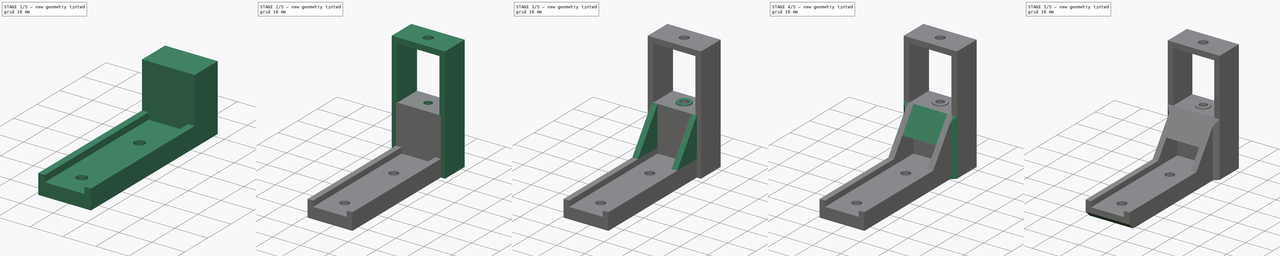
[diagram: build sequence overview — one tinted view per stage of 5, left to right]
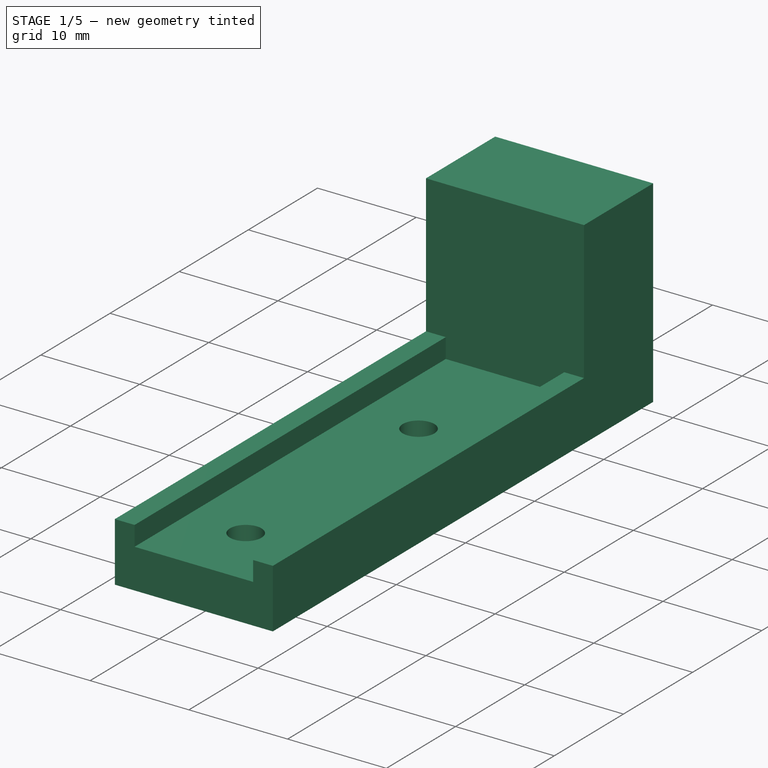
[diagram: stage 1 of 5 — iso view after this stage's code; geometry added in this stage tinted green]
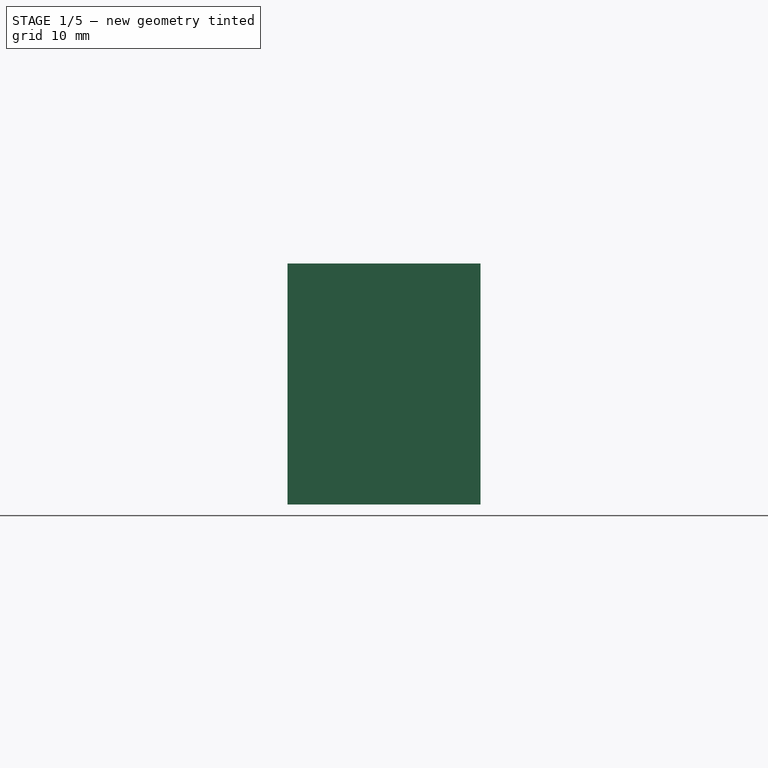
[diagram: stage 1 of 5 — front view after this stage's code; geometry added in this stage tinted green]
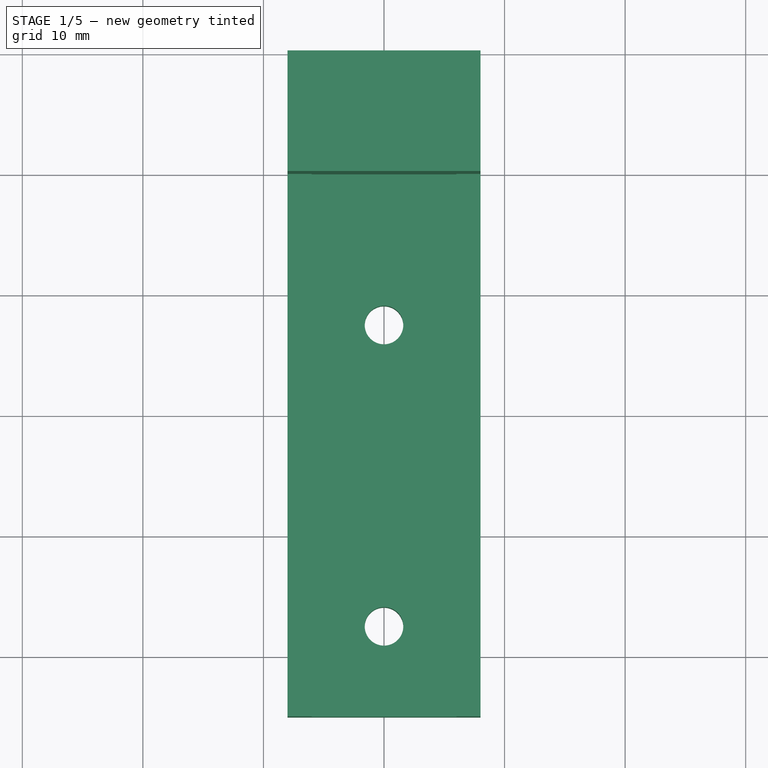
[diagram: stage 1 of 5 — top view after this stage's code; geometry added in this stage tinted green]
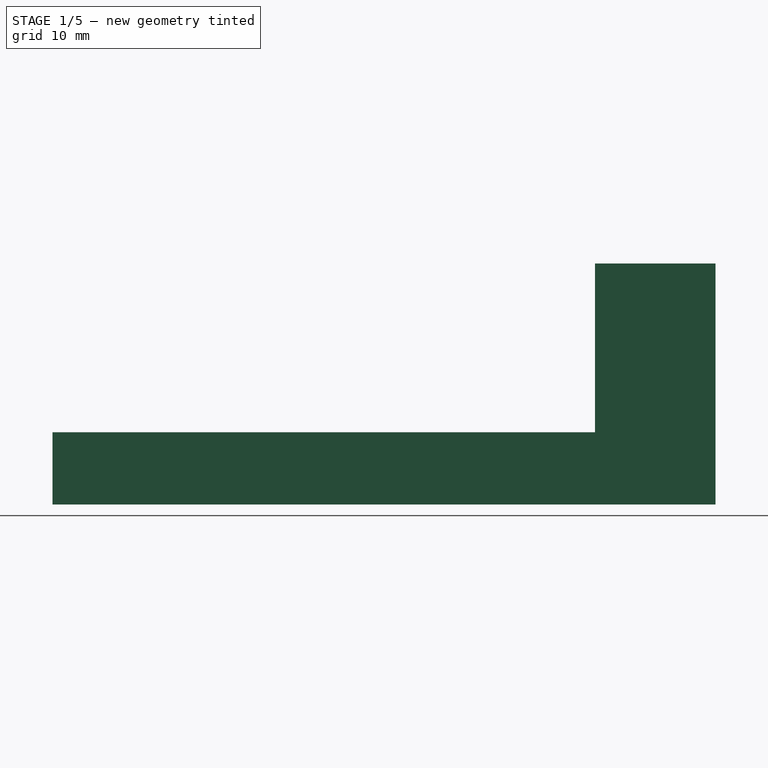
[diagram: stage 1 of 5 — right view after this stage's code; geometry added in this stage tinted green]
FCSTD DOCUMENT  (FreeCAD 0.18.1R)
Label: Rail Tip
License: All rights reserved
LicenseURL: http://en.wikipedia.org/wiki/All_rights_reserved
objects: Sketcher::SketchObject×12, PartDesign::Pad×8, PartDesign::Pocket×4, PartDesign::Chamfer×3, PartDesign::Mirrored×1, Spreadsheet::Sheet×1, PartDesign::Body×1
note: 41 computed .brp shape members not serialized (recipe doc carries the construction recipe); baked Part::Feature solids carry a one-line shape summary decoded from their .brp

FEATURE [Sketcher::SketchObject] Sketch  label="Sketch Rail Bottom"
  MapMode = 5
  Placement = pos=(0,0,0) rot=(1,0,0;1.5708rad)
  Support = -> [XZ_Plane]
  sketch-geometry (8):
    g0: LineSegment StartX=-6 StartY=6 StartZ=0 EndX=-6 EndY=4 EndZ=0
    g1: LineSegment StartX=-6 StartY=4 StartZ=0 EndX=6 EndY=4 EndZ=0
    g2: LineSegment StartX=6 StartY=4 StartZ=0 EndX=6 EndY=6 EndZ=0
    g3: LineSegment StartX=6 StartY=6 StartZ=0 EndX=8 EndY=6 EndZ=0
    g4: LineSegment StartX=8 StartY=6 StartZ=0 EndX=8 EndY=0 EndZ=0
    g5: LineSegment StartX=8 StartY=0 StartZ=0 EndX=-8 EndY=0 EndZ=0
    g6: LineSegment StartX=-8 StartY=0 StartZ=0 EndX=-8 EndY=6 EndZ=0
    g7: LineSegment StartX=-8 StartY=6 StartZ=0 EndX=-6 EndY=6 EndZ=0
  constraints (24):
    c: Coincident(g0,g1)
    c: Horizontal(g1)
    c: Coincident(g1,g2)
    c: Vertical(g2)
    c: Coincident(g2,g3)
    c: Horizontal(g3)
    c: Coincident(g3,g4)
    c: PointOnObject(g4,g-1)
    c: Vertical(g4)
    c: Coincident(g4,g5)
    c: Horizontal(g5)
    c: Coincident(g5,g6)
    c: Vertical(g6)
    c: Coincident(g6,g7)
    c: Coincident(g7,g0)
    c: Horizontal(g7)
    c: Vertical(g0)
    c: Horizontal(g0,g2)
    c: Equal(g7,g3)
    c: Distance(g1) = 12
    c: Distance(g1,g5) = 4
    c: Distance(g0,g6) = 2
    c: Distance(g0,g0) = 2
    c: Distance(g-1,g5) = 8
FEATURE [PartDesign::Pad] Pad  label="Rail Bottom"
  Length = 45
  Length2 = 100
  Placement = pos=(0,0,0) rot=(1,0,0;1.5708rad)
  Profile = -> Sketch
  Type = 0
FEATURE [Sketcher::SketchObject] Sketch001  label="Sketch Rail Holes"
  MapMode = 5
  Placement = pos=(0,0,0) rot=(1,0,0;3.14159rad)
  Support = -> [Pad]
  expr: Constraints[5] = Screws.m3D
  sketch-geometry (2):
    g0: Circle CenterX=0 CenterY=12.5 CenterZ=0 NormalX=0 NormalY=0 NormalZ=1 AngleXU=0 Radius=1.6
    g1: Circle CenterX=0 CenterY=37.5 CenterZ=0 NormalX=0 NormalY=0 NormalZ=1 AngleXU=0 Radius=1.6
  constraints (6):
    c: PointOnObject(g0,g-2)
    c: PointOnObject(g1,g-2)
    c: Equal(g1,g0)
    c: Distance(g-1,g0) = 12.5
    c: Distance(g0,g1) = 25
    c: Diameter(g0) = 3.2
FEATURE [PartDesign::Pocket] Pocket  label="Rail Holes"
  BaseFeature = -> Pad
  Length = 5
  Length2 = 100
  Placement = pos=(0,0,0) rot=(1,0,0;1.5708rad)
  Profile = -> Sketch001
  Type = 1
FEATURE [Sketcher::SketchObject] Sketch002  label="Sketch Base"
  ExternalGeometry = -> [Pocket]
  MapMode = 5
  Placement = pos=(0,0,0) rot=(-1,0,0;1.5708rad)
  Support = -> [Pocket]
  sketch-geometry (4):
    g0: LineSegment StartX=-8 StartY=0 StartZ=0 EndX=8 EndY=0 EndZ=0
    g1: LineSegment StartX=8 StartY=0 StartZ=0 EndX=8 EndY=-20 EndZ=0
    g2: LineSegment StartX=8 StartY=-20 StartZ=0 EndX=-8 EndY=-20 EndZ=0
    g3: LineSegment StartX=-8 StartY=-20 StartZ=0 EndX=-8 EndY=0 EndZ=0
  constraints (10):
    c: Coincident(g0,g1)
    c: Coincident(g1,g2)
    c: Coincident(g2,g3)
    c: Coincident(g3,g0)
    c: Horizontal(g2)
    c: Vertical(g1)
    c: Vertical(g3)
    c: Coincident(g0,g-3)
    c: Coincident(g0,g-4)
    c: Distance(g0,g2) = 20
FEATURE [PartDesign::Pad] Pad001  label="Base"
  BaseFeature = -> Pocket
  Length = 10
  Length2 = 100
  Placement = pos=(0,0,0) rot=(1,0,0;1.5708rad)
  Profile = -> Sketch002
  Type = 0
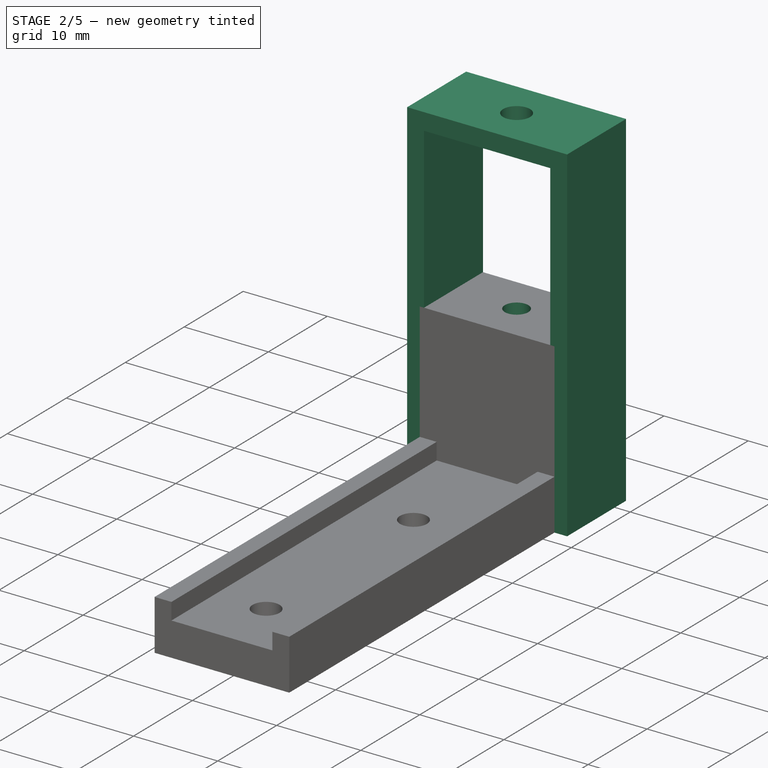
[diagram: stage 2 of 5 — iso view after this stage's code; geometry added in this stage tinted green]
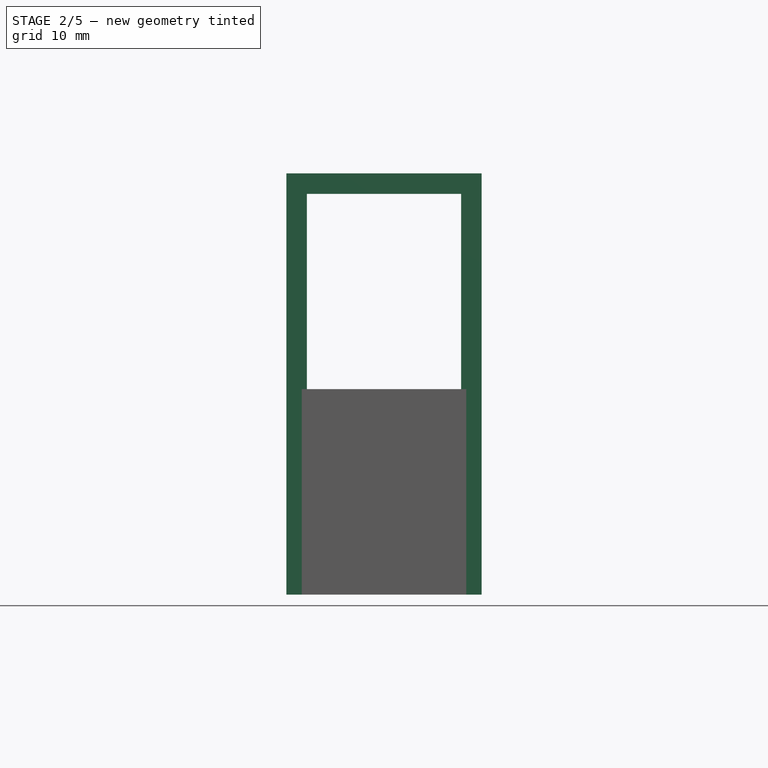
[diagram: stage 2 of 5 — front view after this stage's code; geometry added in this stage tinted green]
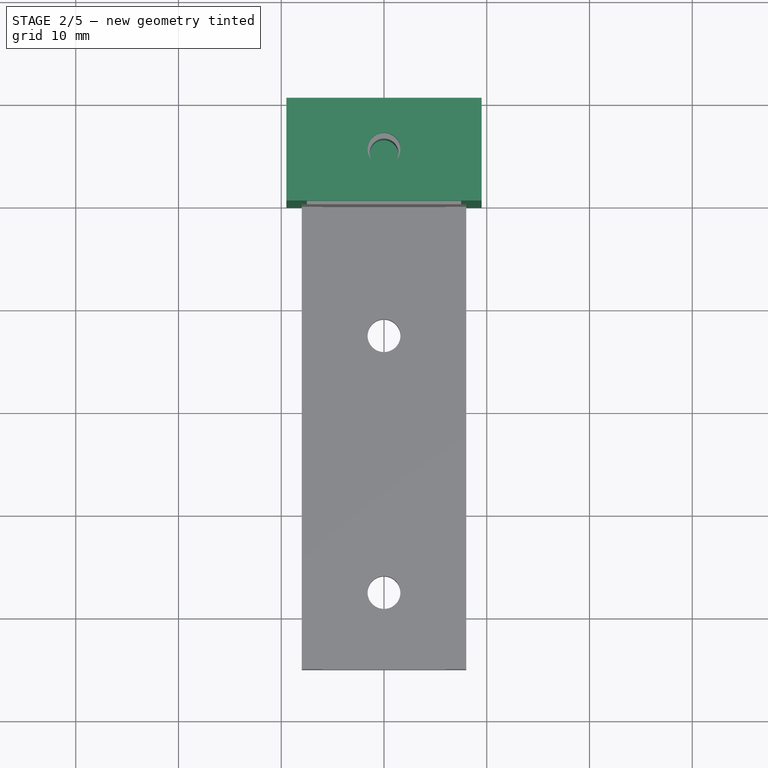
[diagram: stage 2 of 5 — top view after this stage's code; geometry added in this stage tinted green]
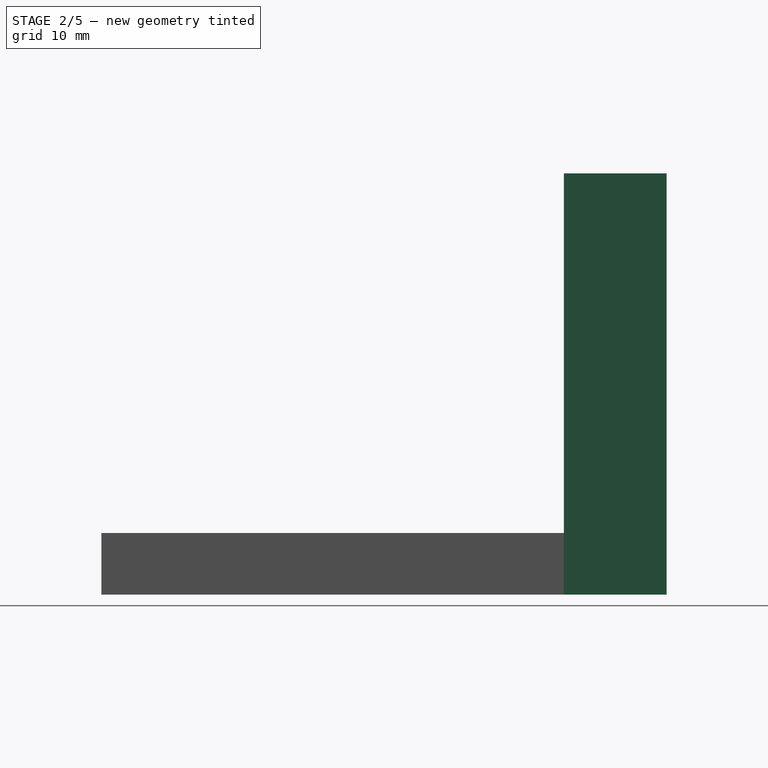
[diagram: stage 2 of 5 — right view after this stage's code; geometry added in this stage tinted green]
FEATURE [Sketcher::SketchObject] Sketch004  label="Sketch Bottom Hole"
  MapMode = 5
  Placement = pos=(0,-2.0572e-12,20) rot=(0,0,1;3.14159rad)
  Support = -> [Pad001]
  expr: Constraints[2] = Screws.m3d
  sketch-geometry (1):
    g0: Circle CenterX=0 CenterY=-5 CenterZ=0 NormalX=0 NormalY=0 NormalZ=1 AngleXU=0 Radius=1.4
  constraints (3):
    c: PointOnObject(g0,g-2)
    c: Distance(g0,g-1) = 5
    c: Diameter(g0) = 2.8
FEATURE [PartDesign::Pocket] Pocket001  label="Bottom Hole"
  BaseFeature = -> Pad001
  Length = 10
  Length2 = 100
  Placement = pos=(0,0,0) rot=(1,0,0;1.5708rad)
  Profile = -> Sketch004
  Type = 0
  expr: Length = Screws.m3l - 20mm
FEATURE [Sketcher::SketchObject] Sketch005  label="Sketch Top Arch"
  ExternalGeometry = -> [Pocket001]
  MapMode = 5
  Placement = pos=(0,10,1.027e-12) rot=(-1,0,0;1.5708rad)
  Support = -> [Pocket001]
  sketch-geometry (12):
    g0: LineSegment StartX=-8 StartY=0 StartZ=0 EndX=-9.5 EndY=0 EndZ=0
    g1: LineSegment StartX=-9.5 StartY=0 StartZ=0 EndX=-9.5 EndY=-41 EndZ=0
    g2: LineSegment StartX=-9.5 StartY=-41 StartZ=0 EndX=9.5 EndY=-41 EndZ=0
    g3: LineSegment StartX=9.5 StartY=-41 StartZ=0 EndX=9.5 EndY=0 EndZ=0
    g4: LineSegment StartX=9.5 StartY=0 StartZ=0 EndX=8 EndY=0 EndZ=0
    g5: LineSegment StartX=8 StartY=0 StartZ=0 EndX=8 EndY=-20 EndZ=0
    g6: LineSegment StartX=8 StartY=-20 StartZ=0 EndX=7.5 EndY=-20 EndZ=0
    g7: LineSegment StartX=7.5 StartY=-20 StartZ=0 EndX=7.5 EndY=-39 EndZ=0
    g8: LineSegment StartX=7.5 StartY=-39 StartZ=0 EndX=-7.5 EndY=-39 EndZ=0
    g9: LineSegment StartX=-7.5 StartY=-39 StartZ=0 EndX=-7.5 EndY=-20 EndZ=0
    g10: LineSegment StartX=-7.5 StartY=-20 StartZ=0 EndX=-8 EndY=-20 EndZ=0
    g11: LineSegment StartX=-8 StartY=-20 StartZ=0 EndX=-8 EndY=0 EndZ=0
  constraints (31):
    c: Distance(g8) = 15
    c: Distance(g7,g3) = 2
    c: Distance(g8,g2) = 2
    c: Distance(g8,g1) = 2
    c: Distance(g7) = 19
    c: Coincident(g6,g-4)
    c: Coincident(g6,g7)
    c: PointOnObject(g6,g-4)
    c: Coincident(g5,g6)
    c: Coincident(g4,g5)
    c: Coincident(g4,g-3)
    c: Coincident(g3,g4)
    c: Coincident(g0,g11)
    c: Coincident(g0,g-5)
    c: Coincident(g0,g1)
    c: Coincident(g10,g11)
    c: Coincident(g10,g-5)
    c: Coincident(g9,g10)
    c: Coincident(g2,g3)
    c: Coincident(g7,g8)
    c: Coincident(g8,g9)
    c: Coincident(g1,g2)
    c: Vertical(g7)
    c: Vertical(g3)
    c: Vertical(g9)
    c: Vertical(g1)
    c: Horizontal(g2)
    c: Horizontal(g8)
    c: Horizontal(g4)
    c: Horizontal(g0)
    c: Symmetric(g6,g9,g-2)
FEATURE [PartDesign::Pad] Pad003  label="Top Arch"
  BaseFeature = -> Pocket001
  Length = 10
  Length2 = 100
  Placement = pos=(0,0,0) rot=(1,0,0;1.5708rad)
  Profile = -> Sketch005
  Reversed = true
  Type = 0
FEATURE [Sketcher::SketchObject] Sketch006  label="Sketch Top Hole"
  MapMode = 5
  Placement = pos=(0,-4.0008e-12,39) rot=(1,0,0;3.14159rad)
  Support = -> [Pad003]
  expr: Constraints[2] = Screws.m3D
  sketch-geometry (1):
    g0: Circle CenterX=0 CenterY=-5 CenterZ=0 NormalX=0 NormalY=0 NormalZ=1 AngleXU=0 Radius=1.6
  constraints (3):
    c: PointOnObject(g0,g-2)
    c: Distance(g0,g-1) = 5
    c: Diameter(g0) = 3.2
FEATURE [PartDesign::Pocket] Pocket002  label="Top Hole"
  BaseFeature = -> Pad003
  Length = 5
  Length2 = 100
  Placement = pos=(0,0,0) rot=(1,0,0;1.5708rad)
  Profile = -> Sketch006
  Type = 2
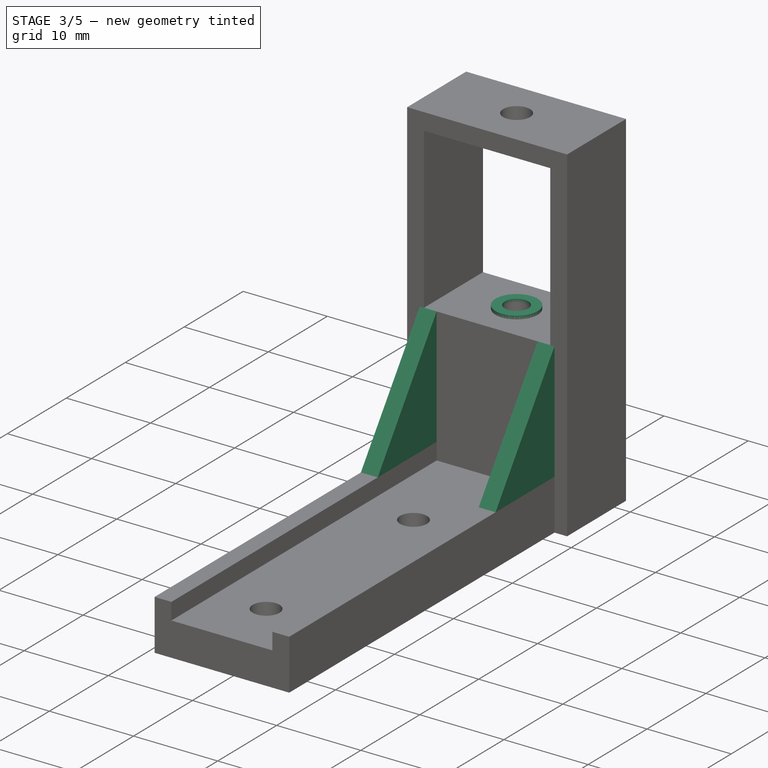
[diagram: stage 3 of 5 — iso view after this stage's code; geometry added in this stage tinted green]
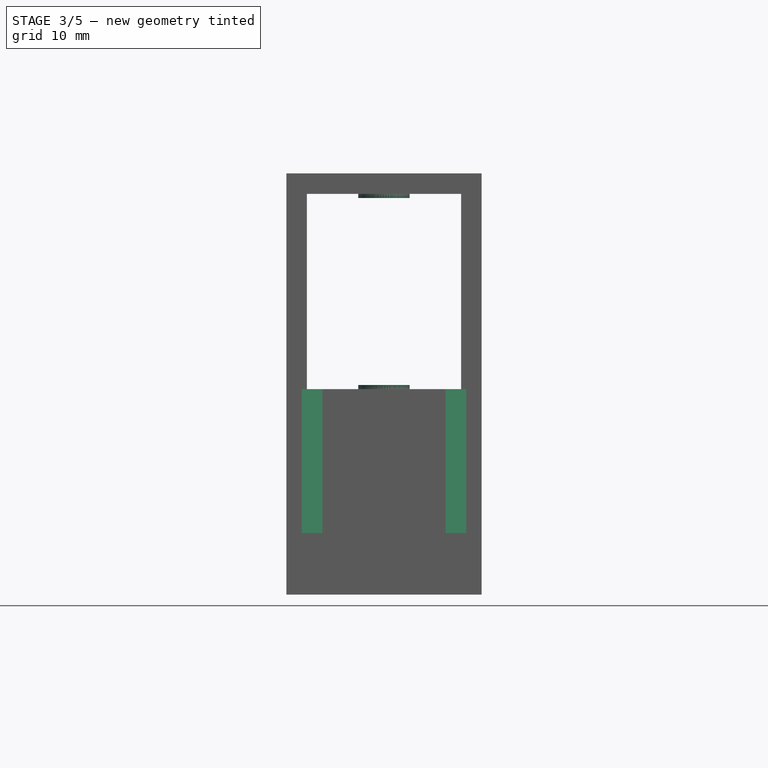
[diagram: stage 3 of 5 — front view after this stage's code; geometry added in this stage tinted green]
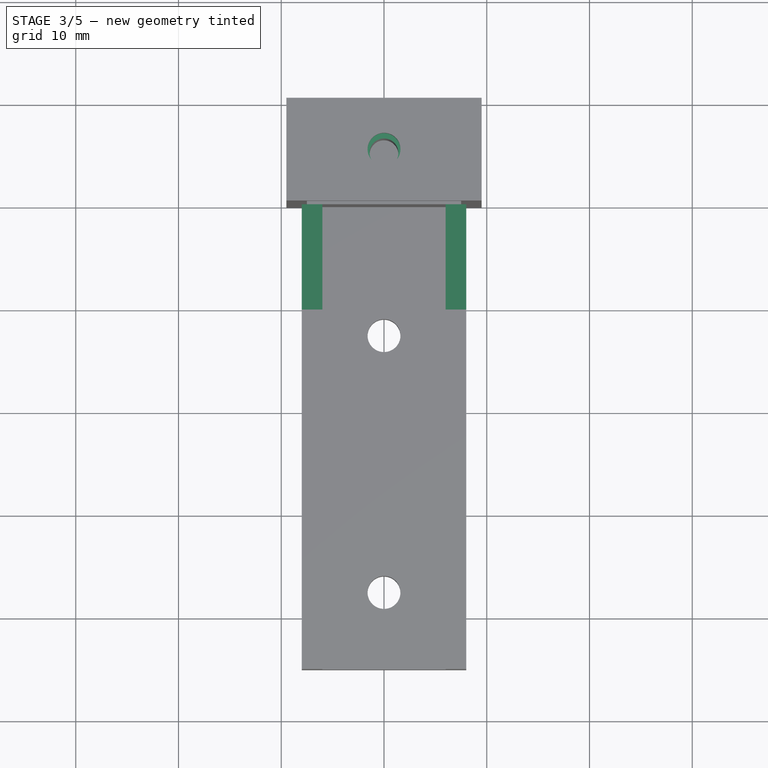
[diagram: stage 3 of 5 — top view after this stage's code; geometry added in this stage tinted green]
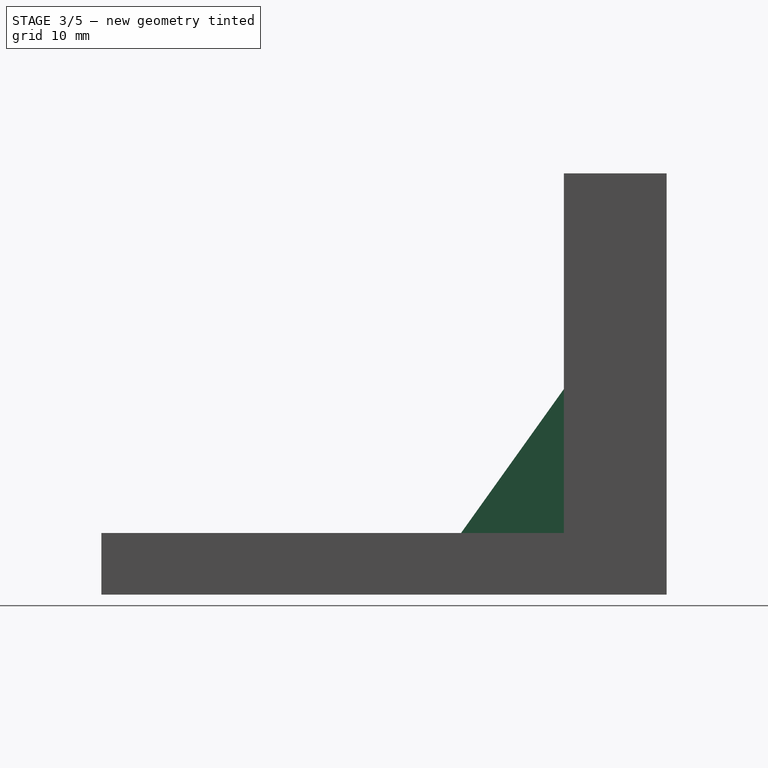
[diagram: stage 3 of 5 — right view after this stage's code; geometry added in this stage tinted green]
FEATURE [Sketcher::SketchObject] Sketch007  label="Sketch Bottom Spacer"
  ExternalGeometry = -> [Pocket001]
  MapMode = 5
  Placement = pos=(0,-2.0439e-12,20) rot=(0,0,1;3.14159rad)
  Support = -> [Pocket002]
  sketch-geometry (2):
    g0: Circle CenterX=0 CenterY=-5 CenterZ=0 NormalX=0 NormalY=0 NormalZ=1 AngleXU=0 Radius=1.4
    g1: Circle CenterX=0 CenterY=-5 CenterZ=0 NormalX=0 NormalY=0 NormalZ=1 AngleXU=0 Radius=2.5
  constraints (4):
    c: Coincident(g1,g0)
    c: Radius(g1) = 2.5
    c: Coincident(g0,g-3)
    c: Equal(g0,g-3)
FEATURE [PartDesign::Pad] Pad004  label="Bottom Spacer"
  BaseFeature = -> Pocket002
  Length = 0.4
  Length2 = 100
  Placement = pos=(0,0,0) rot=(1,0,0;1.5708rad)
  Profile = -> Sketch007
  Type = 0
FEATURE [Sketcher::SketchObject] Sketch008  label="Sketch Top Spacer"
  ExternalGeometry = -> [Pad004]
  MapMode = 5
  Placement = pos=(0,-3.9835e-12,39) rot=(1,0,0;3.14159rad)
  Support = -> [Pad004]
  sketch-geometry (2):
    g0: Circle CenterX=0 CenterY=-5 CenterZ=0 NormalX=0 NormalY=0 NormalZ=1 AngleXU=0 Radius=1.6
    g1: Circle CenterX=0 CenterY=-5 CenterZ=0 NormalX=0 NormalY=0 NormalZ=1 AngleXU=0 Radius=2.5
  constraints (4):
    c: Coincident(g1,g0)
    c: Coincident(g1,g-3)
    c: Equal(g0,g-3)
    c: Diameter(g1) = 5
FEATURE [PartDesign::Pad] Pad005  label="Top Spacer"
  BaseFeature = -> Pad004
  Length = 0.4
  Length2 = 100
  Placement = pos=(0,0,0) rot=(1,0,0;1.5708rad)
  Profile = -> Sketch008
  Type = 0
FEATURE [Sketcher::SketchObject] Sketch009  label="Sketch Rail End Wall"
  ExternalGeometry = -> [Pad005]
  MapMode = 5
  Placement = pos=(8,0,0) rot=(0.707107,0,0.707107;3.14159rad)
  Support = -> [Pad005]
  sketch-geometry (3):
    g0: LineSegment StartX=6 StartY=0 StartZ=0 EndX=20 EndY=-1.6e-14 EndZ=0
    g1: LineSegment StartX=20 StartY=-1.6e-14 StartZ=0 EndX=6 EndY=10 EndZ=0
    g2: LineSegment StartX=6 StartY=10 StartZ=0 EndX=6 EndY=0 EndZ=0
  constraints (7):
    c: Coincident(g-4,g0)
    c: Coincident(g0,g-3)
    c: Coincident(g0,g1)
    c: PointOnObject(g1,g-4)
    c: Coincident(g1,g2)
    c: Coincident(g2,g0)
    c: Distance(g2) = 10
FEATURE [PartDesign::Pad] Pad006  label="Rail End Wall"
  BaseFeature = -> Pad005
  Length = 10
  Length2 = 100
  Placement = pos=(0,0,0) rot=(1,0,0;1.5708rad)
  Profile = -> Sketch009
  Reversed = true
  Type = 3
  UpToFace = -> Pad005 [Face7]
FEATURE [PartDesign::Mirrored] Mirrored  label="Mirror Rail End Wall"
  BaseFeature = -> Pad006
  MirrorPlane = -> YZ_Plane
  Originals = -> [Pad006]
  Placement = pos=(0,0,0) rot=(1,0,0;1.5708rad)
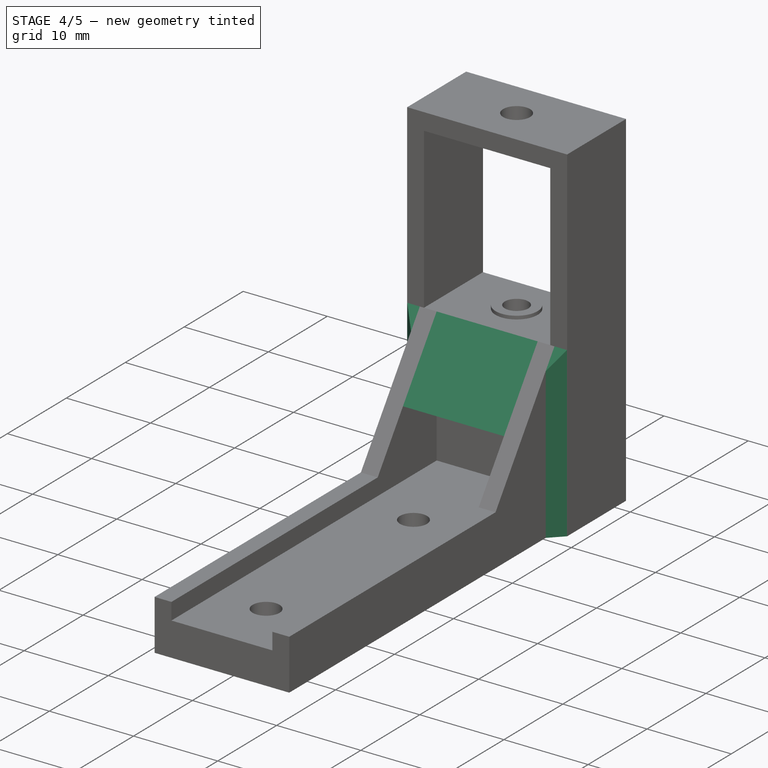
[diagram: stage 4 of 5 — iso view after this stage's code; geometry added in this stage tinted green]
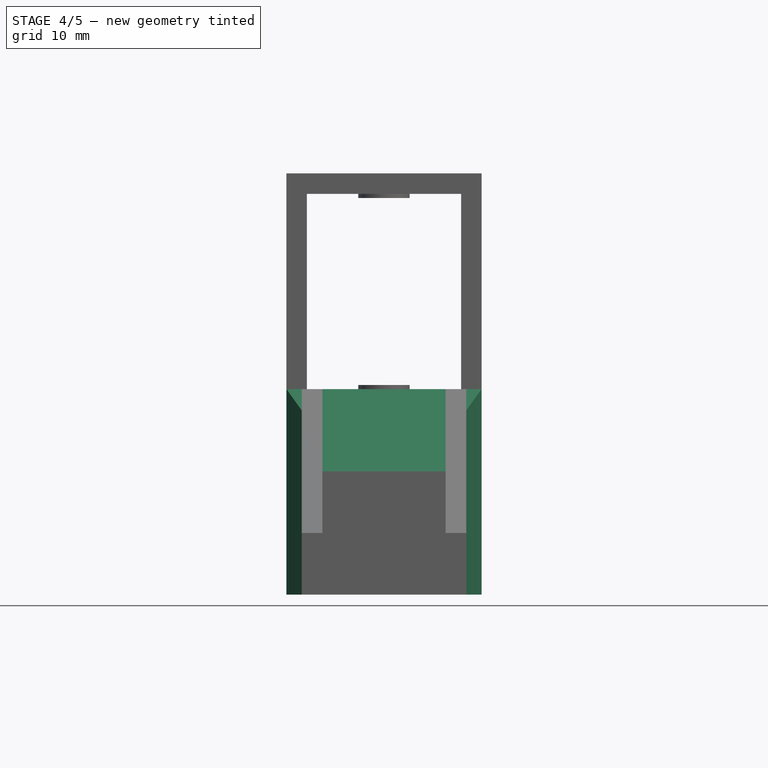
[diagram: stage 4 of 5 — front view after this stage's code; geometry added in this stage tinted green]
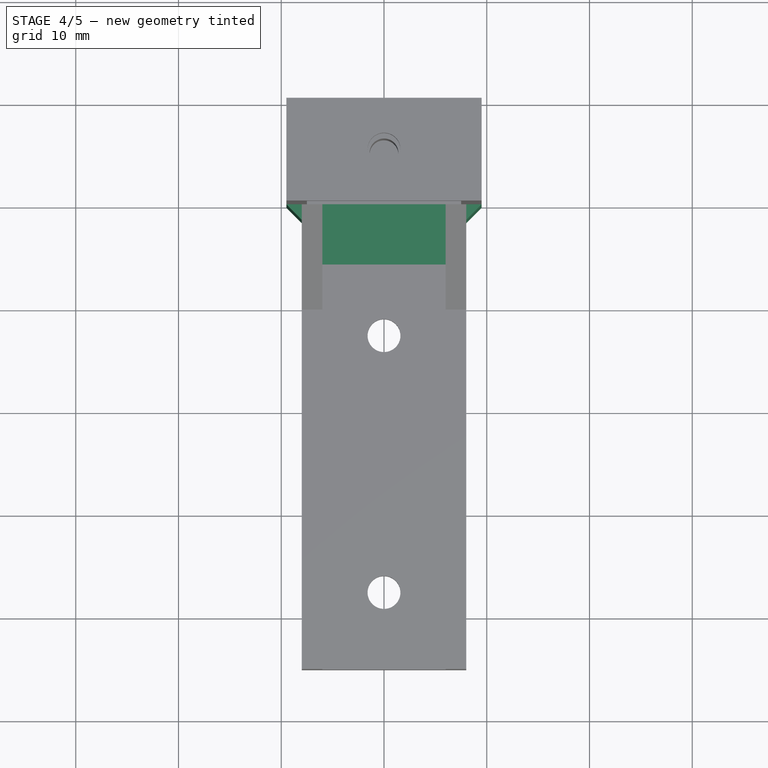
[diagram: stage 4 of 5 — top view after this stage's code; geometry added in this stage tinted green]
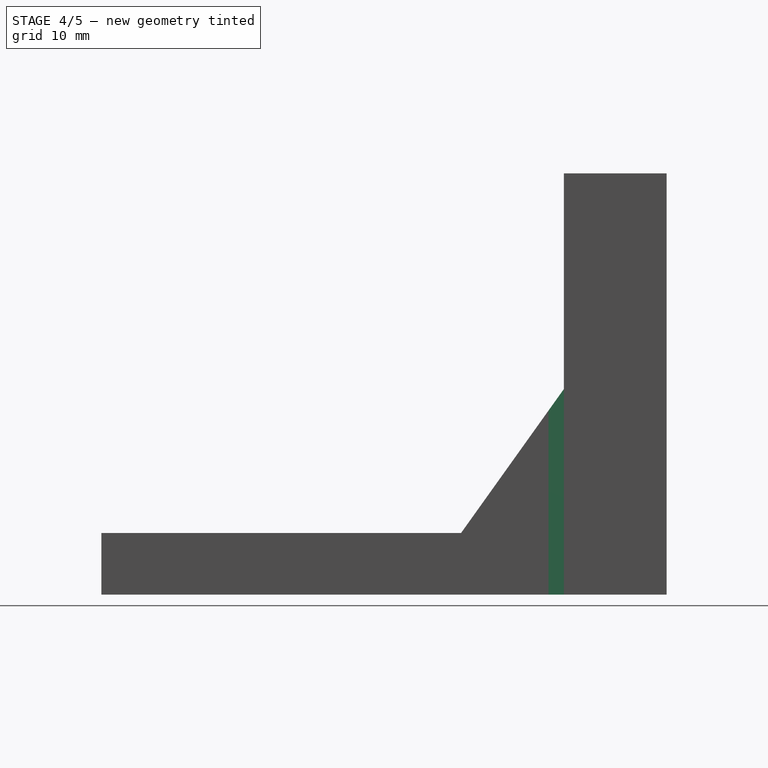
[diagram: stage 4 of 5 — right view after this stage's code; geometry added in this stage tinted green]
FEATURE [Sketcher::SketchObject] Sketch010  label="Sketch Rail End Top"
  ExternalGeometry = -> [Mirrored]
  MapMode = 5
  Placement = pos=(6,0,0) rot=(0.707107,0,-0.707107;3.14159rad)
  Support = -> [Mirrored]
  sketch-geometry (3):
    g0: LineSegment StartX=-20 StartY=0 StartZ=0 EndX=-12 EndY=5.71429 EndZ=0
    g1: LineSegment StartX=-12 StartY=5.71429 StartZ=0 EndX=-12 EndY=0 EndZ=0
    g2: LineSegment StartX=-12 StartY=0 StartZ=0 EndX=-20 EndY=0 EndZ=0
  constraints (8):
    c: Coincident(g-3,g0)
    c: PointOnObject(g0,g-3)
    c: Coincident(g0,g1)
    c: PointOnObject(g1,g-1)
    c: Vertical(g1)
    c: Coincident(g1,g2)
    c: Coincident(g2,g0)
    c: Distance(g0,g-4) = 8
FEATURE [PartDesign::Pad] Pad007  label="Rail End Top"
  BaseFeature = -> Mirrored
  Length = 10
  Length2 = 100
  Placement = pos=(0,0,0) rot=(1,0,0;1.5708rad)
  Profile = -> Sketch010
  Type = 2
FEATURE [PartDesign::Chamfer] Chamfer  label="Sides Chamfers"
  Base = -> Pad007 [Edge55,Edge49]
  BaseFeature = -> Pad007
  Placement = pos=(0,0,0) rot=(1,0,0;1.5708rad)
  Size = 1.49
FEATURE [Spreadsheet::Sheet] Spreadsheet  label="Screws"
  cells = A1=Screw Type; B1=Length; D1=Diameter Loose; F1=Diameter Tight; H1=Width Across Flats; A2=M3 Tapping; B2=m3tl; C2(m3tl)==12mm; D2=m3tD; E2(m3tD)==3.4mm; F2=m3td; G2(m3td)==2.8mm; A3=M3; B3=m3l; C3(m3l)==30mm; D3=m3D; E3(m3D)==3.2mm; F3=m3d; G3(m3d)==2.8mm; A4=M3 Nut; H4=m3S; I4(m3S)==5.6mm
FEATURE [Sketcher::SketchObject] Sketch011  label="Sketch Nut Cuts"
  ExternalGeometry = -> [Chamfer]
  MapMode = 5
  Placement = pos=(0,0,0) rot=(1,0,0;3.14159rad)
  Support = -> [Chamfer]
  expr: Constraints[39] = Screws.m3S
  sketch-geometry (14):
    g0: LineSegment StartX=-3.23316 StartY=37.5 StartZ=0 EndX=-1.61658 EndY=34.7 EndZ=0
    g1: LineSegment StartX=-1.61658 StartY=34.7 StartZ=0 EndX=1.61658 EndY=34.7 EndZ=0
    g2: LineSegment StartX=1.61658 StartY=34.7 StartZ=0 EndX=3.23316 EndY=37.5 EndZ=0
    g3: LineSegment StartX=3.23316 StartY=37.5 StartZ=0 EndX=1.61658 EndY=40.3 EndZ=0
    g4: LineSegment StartX=1.61658 StartY=40.3 StartZ=0 EndX=-1.61658 EndY=40.3 EndZ=0
    g5: LineSegment StartX=-1.61658 StartY=40.3 StartZ=0 EndX=-3.23316 EndY=37.5 EndZ=0
    g6: Circle [constr] CenterX=0 CenterY=37.5 CenterZ=0 NormalX=0 NormalY=0 NormalZ=1 AngleXU=0 Radius=3.23316
    g7: LineSegment StartX=-3.23316 StartY=12.5 StartZ=0 EndX=-1.61658 EndY=9.7 EndZ=0
    g8: LineSegment StartX=-1.61658 StartY=9.7 StartZ=0 EndX=1.61658 EndY=9.7 EndZ=0
    g9: LineSegment StartX=1.61658 StartY=9.7 StartZ=0 EndX=3.23316 EndY=12.5 EndZ=0
    g10: LineSegment StartX=3.23316 StartY=12.5 StartZ=0 EndX=1.61658 EndY=15.3 EndZ=0
    g11: LineSegment StartX=1.61658 StartY=15.3 StartZ=0 EndX=-1.61658 EndY=15.3 EndZ=0
    g12: LineSegment StartX=-1.61658 StartY=15.3 StartZ=0 EndX=-3.23316 EndY=12.5 EndZ=0
    g13: Circle [constr] CenterX=0 CenterY=12.5 CenterZ=0 NormalX=0 NormalY=0 NormalZ=1 AngleXU=0 Radius=3.23316
  constraints (32):
    c: Coincident(g0,g1)
    c: Coincident(g1,g2)
    c: Coincident(g2,g3)
    c: Coincident(g3,g4)
    c: Coincident(g4,g5)
    c: Coincident(g5,g0)
    c: Equal(g0, g1-g5) x5
    c: PointOnObject(g0,g6)
    c: PointOnObject(g1,g6)
    c: PointOnObject(g2,g6)
    c: PointOnObject(g3,g6)
    c: PointOnObject(g4,g6)
    c: PointOnObject(g5,g6)
    c: Coincident(g6,g-4)
    c: Coincident(g7,g8)
    c: Coincident(g8,g9)
    c: Coincident(g9,g10)
    c: Coincident(g10,g11)
    c: Coincident(g11,g12)
    c: Coincident(g12,g7)
    c: Equal(g7, g8-g12) x5
    c: PointOnObject(g7,g13)
    c: PointOnObject(g8,g13)
    c: PointOnObject(g9,g13)
    c: PointOnObject(g10,g13)
    c: PointOnObject(g11,g13)
    c: PointOnObject(g12,g13)
    c: Coincident(g13,g-3)
    c: Horizontal(g11)
    c: Horizontal(g1)
    c: Equal(g1,g11)
    c: Distance(g0,g4) = 5.6
FEATURE [PartDesign::Pocket] Pocket003  label="Nut Cuts"
  BaseFeature = -> Chamfer
  Length = 2
  Length2 = 100
  Placement = pos=(0,0,0) rot=(1,0,0;1.5708rad)
  Profile = -> Sketch011
  Type = 0
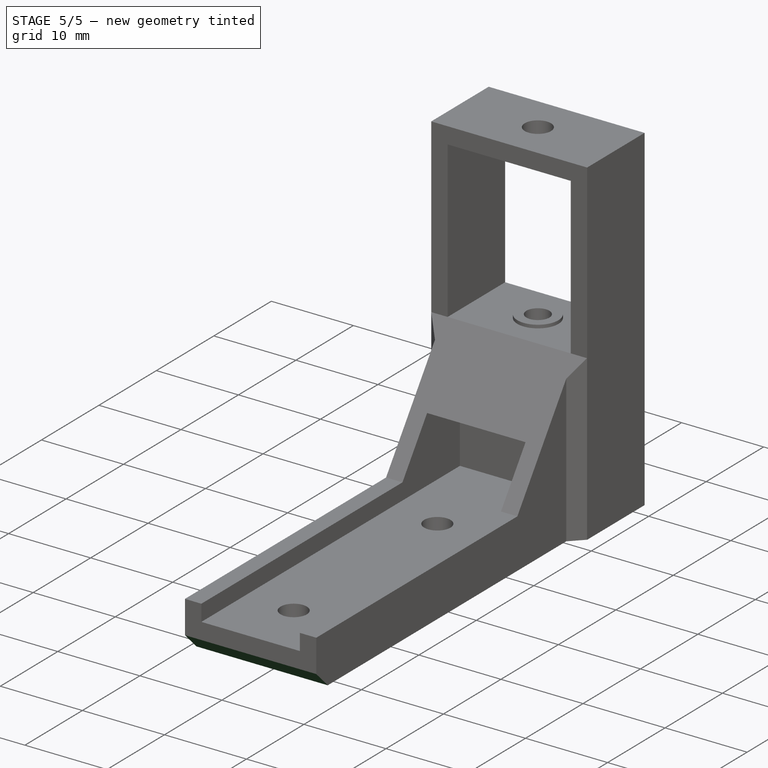
[diagram: stage 5 of 5 — iso view after this stage's code; geometry added in this stage tinted green]
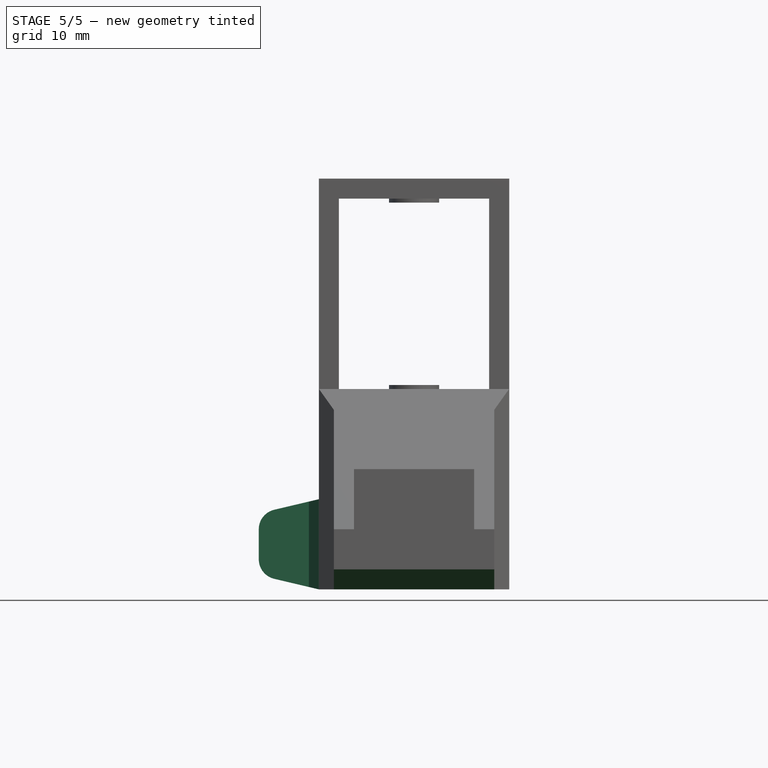
[diagram: stage 5 of 5 — front view after this stage's code; geometry added in this stage tinted green]
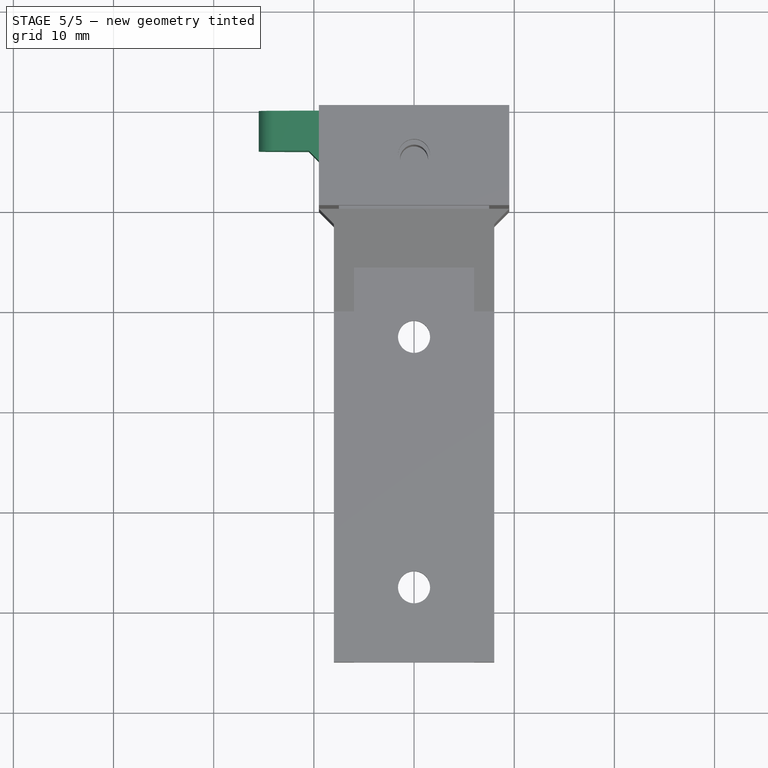
[diagram: stage 5 of 5 — top view after this stage's code; geometry added in this stage tinted green]
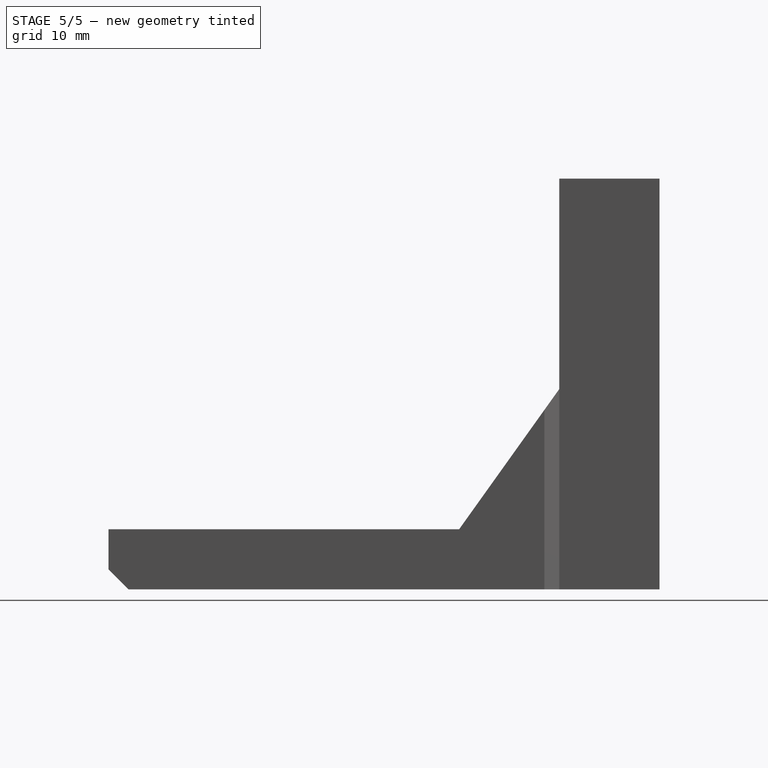
[diagram: stage 5 of 5 — right view after this stage's code; geometry added in this stage tinted green]
FEATURE [PartDesign::Chamfer] Chamfer001  label="Tip Chamfer"
  Base = -> Pocket003 [Edge51]
  BaseFeature = -> Pocket003
  Placement = pos=(0,0,0) rot=(1,0,0;1.5708rad)
  Size = 2
FEATURE [Sketcher::SketchObject] Sketch012  label="Sketch Endstop Bumper Pad"
  ExternalGeometry = -> [Chamfer001]
  MapMode = 5
  Placement = pos=(0,10,1.0114e-12) rot=(-1,0,0;1.5708rad)
  Support = -> [Chamfer001]
  sketch-geometry (6):
    g0: LineSegment StartX=-9.5 StartY=0 StartZ=0 EndX=-13.9598 EndY=-1.05358 EndZ=0
    g1: LineSegment StartX=-9.5 StartY=-9 StartZ=0 EndX=-13.9598 EndY=-7.94642 EndZ=0
    g2: LineSegment StartX=-9.5 StartY=-9 StartZ=0 EndX=-9.5 EndY=0 EndZ=0
    g3: ArcOfCircle CenterX=-13.5 CenterY=-3 CenterZ=0 NormalX=0 NormalY=0 NormalZ=1 AngleXU=0 Radius=2 StartAngle=1.80278 EndAngle=3.14159
    g4: ArcOfCircle CenterX=-13.5 CenterY=-6 CenterZ=0 NormalX=0 NormalY=0 NormalZ=1 AngleXU=0 Radius=2 StartAngle=3.14159 EndAngle=4.4804
    g5: LineSegment StartX=-15.5 StartY=-6 StartZ=0 EndX=-15.5 EndY=-3 EndZ=0
  constraints (15):
    c: Coincident(g0,g-3)
    c: PointOnObject(g1,g-3)
    c: Vertical(g1,g0)
    c: Coincident(g2,g1)
    c: Coincident(g2,g0)
    c: Tangent(g3,g0) = -1.5708
    c: Tangent(g5,g3) = 1.5708
    c: Tangent(g5,g4) = 1.5708
    c: Tangent(g4,g1) = 1.5708
    c: Vertical(g5)
    c: Equal(g3,g4)
    c: Radius(g3) = 2
    c: Distance(g5) = 3
    c: DistanceX(g3,g0) = 6
    c: DistanceY(g3,g0) = 3
FEATURE [PartDesign::Pad] Pad008  label="Endstop Bumper Pad"
  BaseFeature = -> Chamfer001
  Length = 4
  Length2 = 100
  Placement = pos=(0,0,0) rot=(1,0,0;1.5708rad)
  Profile = -> Sketch012
  Reversed = true
  Type = 0
FEATURE [PartDesign::Chamfer] Chamfer002  label="Chamfer Endstop Bumper"
  Base = -> Pad008 [Edge124]
  BaseFeature = -> Pad008
  Placement = pos=(0,0,0) rot=(1,0,0;1.5708rad)
  Size = 1
FEATURE [PartDesign::Body] Body  label="Rail Tip"
  Group = -> [Sketch,Pad,Sketch001,Pocket,Sketch002,Pad001,Sketch004,Pocket001,Sketch005,Pad003,Sketch006,Pocket002,Sketch007,Pad004,Sketch008,Pad005,Sketch009,Pad006,Mirrored,Sketch010,Pad007,Chamfer,Sketch011,Pocket003,Chamfer001,Sketch012,Pad008,Chamfer002]
  Origin = -> Origin
  Placement = pos=(0,0,0) rot=(0,0.707107,-0.707107;3.14159rad)
  Tip = -> Chamfer002
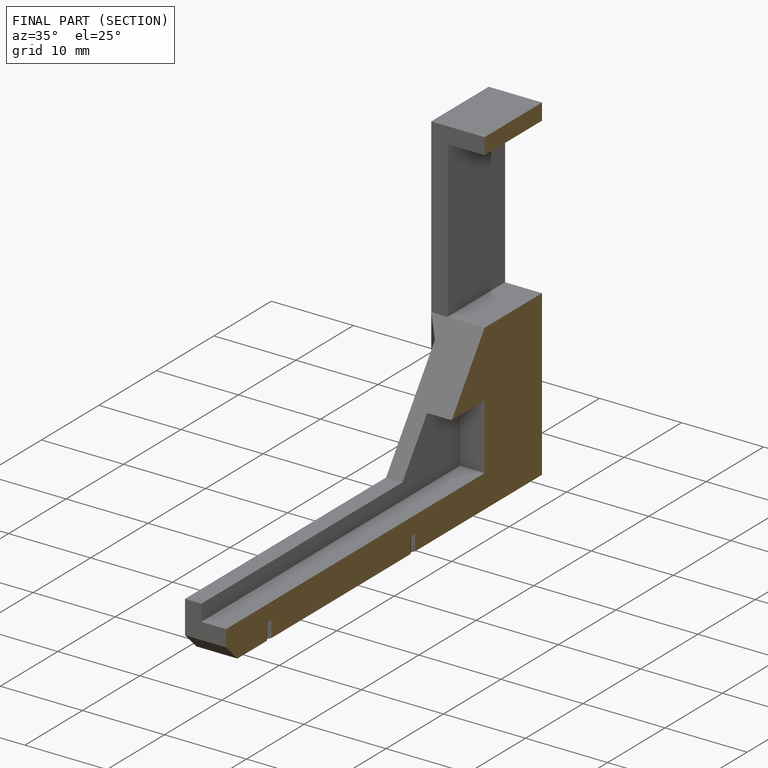
[diagram: finished part — half-section view (interior)]
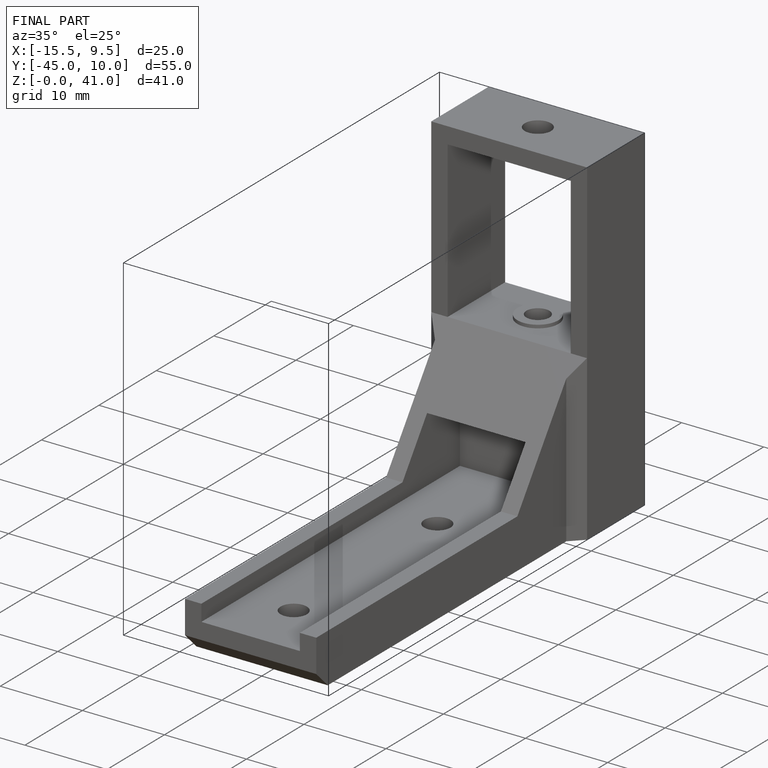
[diagram: finished part — iso view with bounding-box wireframe]
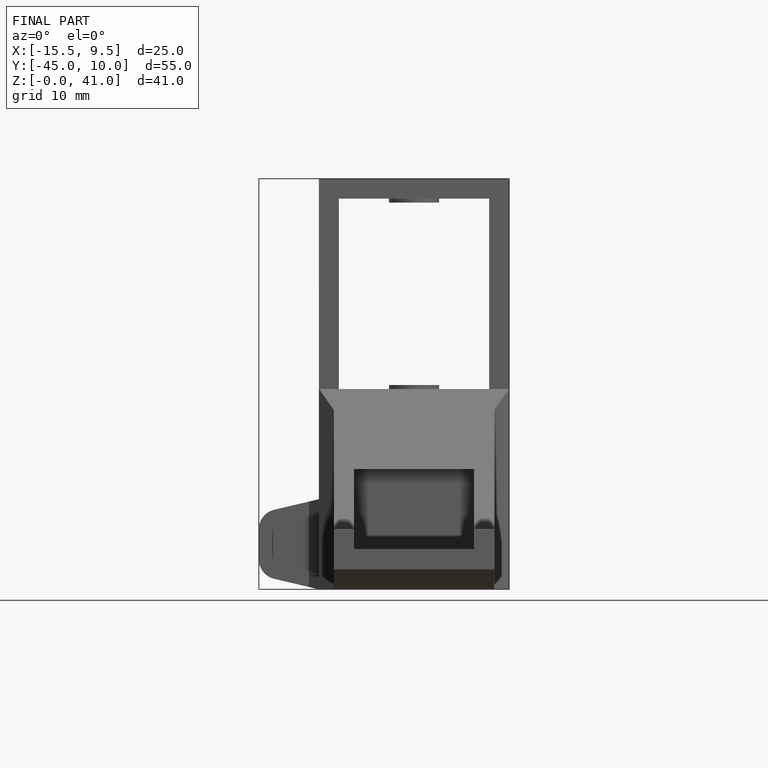
[diagram: finished part — front view with bounding-box wireframe]
